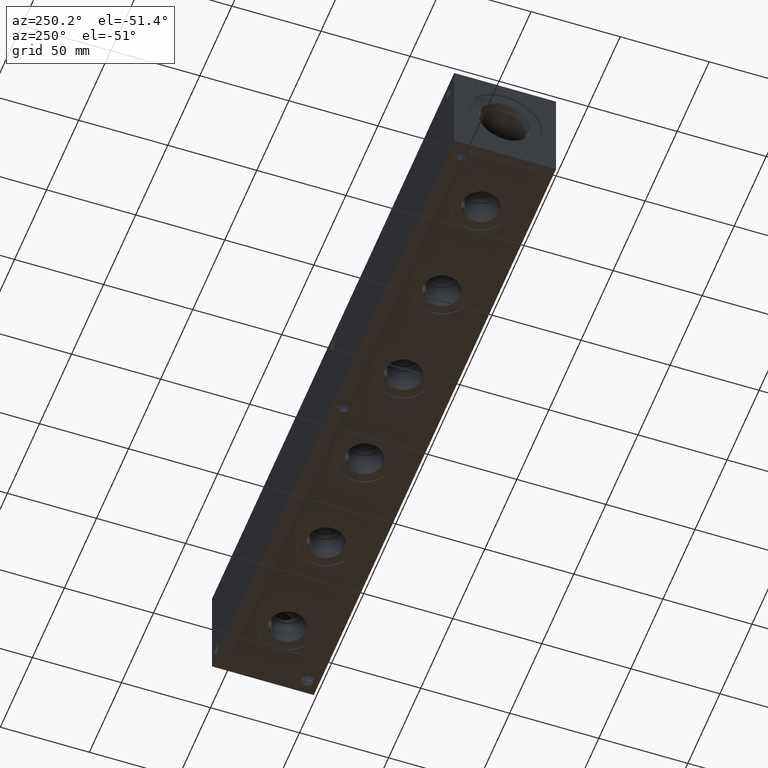
[diagram: clean part render]
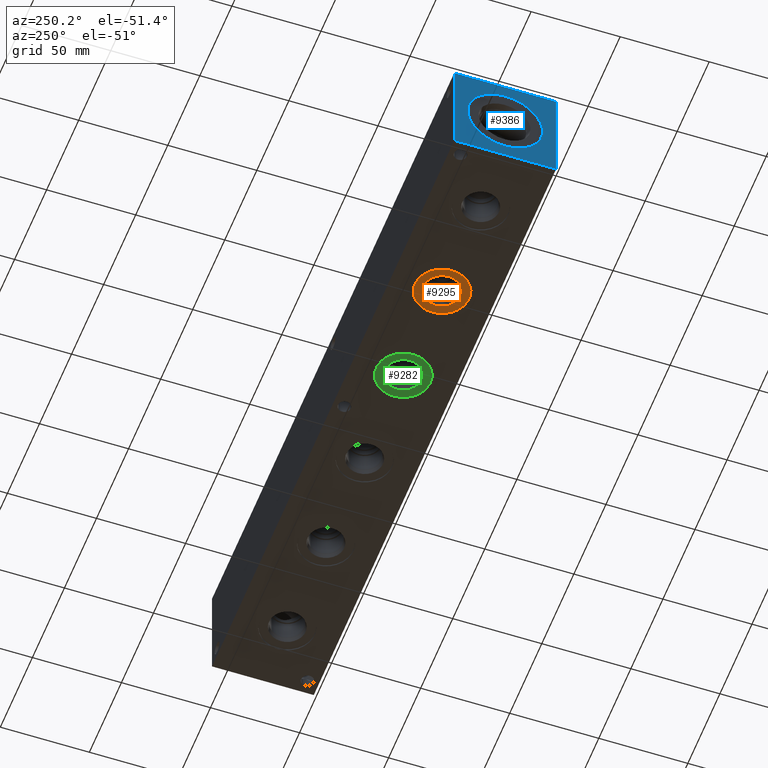
[diagram: same view with three faces highlighted in distinct colors, each labeled with its STEP entity id]
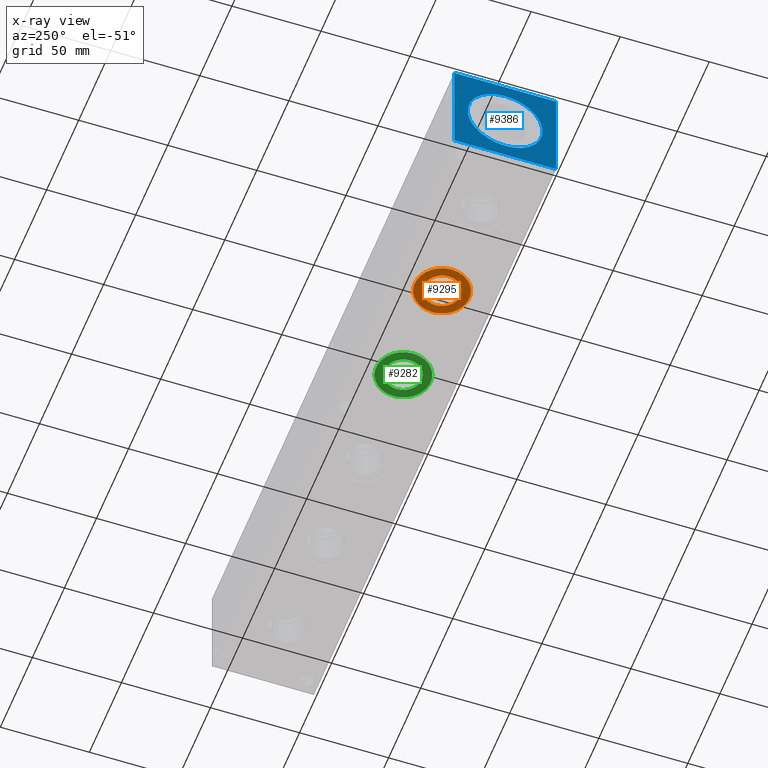
[diagram: x-ray of the same camera — body ghosted, the three highlighted faces saturated]
A machine part, auxiliary view with three faces highlighted in distinct colors.
The next image is the same camera in x-ray (body ghosted, the three faces saturated) — at least one of them is partly hidden behind the body in this view.
Their STEP definitions:

[orange] entity #9295 — the highlighted planar face has unit normal (0, 0, 1).
#296=CIRCLE('',#9828,15.3162);
#297=CIRCLE('',#9829,15.3162);
#298=CIRCLE('',#9831,10.2997);
#299=CIRCLE('',#9832,10.2997);
#477=FACE_BOUND('',#1672,.T.);
#725=PLANE('',#9830);
#1139=FACE_OUTER_BOUND('',#1671,.T.);
#1671=EDGE_LOOP('',(#7985,#7986));
#1672=EDGE_LOOP('',(#7987,#7988));
#4369=VERTEX_POINT('',#16042);
#4370=VERTEX_POINT('',#16044);
#4371=VERTEX_POINT('',#16048);
#4372=VERTEX_POINT('',#16049);
#5623=EDGE_CURVE('',#4369,#4370,#296,.T.);
#5624=EDGE_CURVE('',#4370,#4369,#297,.T.);
#5625=EDGE_CURVE('',#4371,#4372,#298,.T.);
#5626=EDGE_CURVE('',#4372,#4371,#299,.T.);
#7985=ORIENTED_EDGE('',*,*,#5624,.F.);
#7986=ORIENTED_EDGE('',*,*,#5623,.F.);
#7987=ORIENTED_EDGE('',*,*,#5625,.T.);
#7988=ORIENTED_EDGE('',*,*,#5626,.T.);
#9295=ADVANCED_FACE('',(#1139,#477),#725,.F.);
#9828=AXIS2_PLACEMENT_3D('',#16045,#11605,#11606);
#9829=AXIS2_PLACEMENT_3D('',#16046,#11607,#11608);
#9830=AXIS2_PLACEMENT_3D('',#16047,#11609,#11610);
#9831=AXIS2_PLACEMENT_3D('',#16050,#11611,#11612);
#9832=AXIS2_PLACEMENT_3D('',#16051,#11613,#11614);
#11605=DIRECTION('center_axis',(0.,0.,1.));
#11606=DIRECTION('ref_axis',(1.,0.,0.));
#11607=DIRECTION('center_axis',(0.,0.,1.));
#11608=DIRECTION('ref_axis',(1.,0.,0.));
#11609=DIRECTION('center_axis',(0.,0.,1.));
#11610=DIRECTION('ref_axis',(1.,0.,0.));
#11611=DIRECTION('center_axis',(0.,0.,1.));
#11612=DIRECTION('ref_axis',(1.,0.,0.));
#11613=DIRECTION('center_axis',(0.,0.,1.));
#11614=DIRECTION('ref_axis',(1.,0.,0.));
#16042=CARTESIAN_POINT('',(83.1088,28.575,0.7874));
#16044=CARTESIAN_POINT('',(113.7412,28.575,0.7874));
#16045=CARTESIAN_POINT('Origin',(98.425,28.575,0.7874));
#16046=CARTESIAN_POINT('Origin',(98.425,28.575,0.7874));
#16047=CARTESIAN_POINT('Origin',(108.7247,28.575,0.7874));
#16048=CARTESIAN_POINT('',(108.7247,28.575,0.7874));
#16049=CARTESIAN_POINT('',(88.1253,28.575,0.787399999999997));
#16050=CARTESIAN_POINT('Origin',(98.425,28.575,0.7874));
#16051=CARTESIAN_POINT('Origin',(98.425,28.575,0.7874));

[blue] entity #9386 — the highlighted planar face has unit normal (-1, 0, 0).
#216=CIRCLE('',#9691,21.0185);
#217=CIRCLE('',#9692,21.0185);
#497=FACE_BOUND('',#1783,.T.);
#745=PLANE('',#10053);
#1230=FACE_OUTER_BOUND('',#1782,.T.);
#1782=EDGE_LOOP('',(#8427,#8428,#8429,#8430));
#1783=EDGE_LOOP('',(#8431,#8432));
#2068=LINE('',#14555,#2847);
#2576=LINE('',#16484,#3355);
#2577=LINE('',#16485,#3356);
#2578=LINE('',#16486,#3357);
#2847=VECTOR('',#10446,10.);
#3355=VECTOR('',#12128,10.);
#3356=VECTOR('',#12129,10.);
#3357=VECTOR('',#12130,10.);
#3939=VERTEX_POINT('',#14548);
#3942=VERTEX_POINT('',#14553);
#4279=VERTEX_POINT('',#15775);
#4280=VERTEX_POINT('',#15776);
#4511=VERTEX_POINT('',#16482);
#4512=VERTEX_POINT('',#16483);
#4998=EDGE_CURVE('',#3942,#3939,#2068,.T.);
#5490=EDGE_CURVE('',#4279,#4280,#216,.T.);
#5491=EDGE_CURVE('',#4280,#4279,#217,.T.);
#5828=EDGE_CURVE('',#4511,#4512,#2576,.T.);
#5829=EDGE_CURVE('',#4512,#3939,#2577,.T.);
#5830=EDGE_CURVE('',#4511,#3942,#2578,.T.);
#8427=ORIENTED_EDGE('',*,*,#5828,.T.);
#8428=ORIENTED_EDGE('',*,*,#5829,.T.);
#8429=ORIENTED_EDGE('',*,*,#4998,.F.);
#8430=ORIENTED_EDGE('',*,*,#5830,.F.);
#8431=ORIENTED_EDGE('',*,*,#5490,.T.);
#8432=ORIENTED_EDGE('',*,*,#5491,.T.);
#9386=ADVANCED_FACE('',(#1230,#497),#745,.T.);
#9691=AXIS2_PLACEMENT_3D('',#15777,#11290,#11291);
#9692=AXIS2_PLACEMENT_3D('',#15778,#11292,#11293);
#10053=AXIS2_PLACEMENT_3D('',#16481,#12126,#12127);
#10446=DIRECTION('',(0.,-1.,0.));
#11290=DIRECTION('center_axis',(1.,0.,0.));
#11291=DIRECTION('ref_axis',(0.,0.,1.));
#11292=DIRECTION('center_axis',(1.,0.,0.));
#11293=DIRECTION('ref_axis',(0.,0.,1.));
#12126=DIRECTION('center_axis',(-1.,0.,0.));
#12127=DIRECTION('ref_axis',(0.,-1.,0.));
#12128=DIRECTION('',(0.,-1.,0.));
#12129=DIRECTION('',(0.,0.,1.));
#12130=DIRECTION('',(0.,0.,1.));
#14548=CARTESIAN_POINT('',(0.,0.,57.15));
#14553=CARTESIAN_POINT('',(0.,57.15,57.15));
#14555=CARTESIAN_POINT('',(0.,57.15,57.15));
#15775=CARTESIAN_POINT('',(0.,28.575,49.5935));
#15776=CARTESIAN_POINT('',(0.,28.575,7.55649999999999));
#15777=CARTESIAN_POINT('Origin',(0.,28.575,28.575));
#15778=CARTESIAN_POINT('Origin',(0.,28.575,28.575));
#16481=CARTESIAN_POINT('Origin',(0.,57.15,0.));
#16482=CARTESIAN_POINT('',(0.,57.15,0.));
#16483=CARTESIAN_POINT('',(0.,0.,0.));
#16484=CARTESIAN_POINT('',(0.,57.15,0.));
#16485=CARTESIAN_POINT('',(0.,0.,0.));
#16486=CARTESIAN_POINT('',(0.,57.15,0.));

[green] entity #9282 — the highlighted planar face has unit normal (0, 0, 1).
#273=CIRCLE('',#9792,15.3162);
#274=CIRCLE('',#9793,15.3162);
#275=CIRCLE('',#9795,10.2997);
#276=CIRCLE('',#9796,10.2997);
#476=FACE_BOUND('',#1658,.T.);
#724=PLANE('',#9794);
#1126=FACE_OUTER_BOUND('',#1657,.T.);
#1657=EDGE_LOOP('',(#7922,#7923));
#1658=EDGE_LOOP('',(#7924,#7925));
#4342=VERTEX_POINT('',#15967);
#4343=VERTEX_POINT('',#15969);
#4344=VERTEX_POINT('',#15973);
#4345=VERTEX_POINT('',#15974);
#5588=EDGE_CURVE('',#4342,#4343,#273,.T.);
#5589=EDGE_CURVE('',#4343,#4342,#274,.T.);
#5590=EDGE_CURVE('',#4344,#4345,#275,.T.);
#5591=EDGE_CURVE('',#4345,#4344,#276,.T.);
#7922=ORIENTED_EDGE('',*,*,#5589,.F.);
#7923=ORIENTED_EDGE('',*,*,#5588,.F.);
#7924=ORIENTED_EDGE('',*,*,#5590,.T.);
#7925=ORIENTED_EDGE('',*,*,#5591,.T.);
#9282=ADVANCED_FACE('',(#1126,#476),#724,.F.);
#9792=AXIS2_PLACEMENT_3D('',#15970,#11521,#11522);
#9793=AXIS2_PLACEMENT_3D('',#15971,#11523,#11524);
#9794=AXIS2_PLACEMENT_3D('',#15972,#11525,#11526);
#9795=AXIS2_PLACEMENT_3D('',#15975,#11527,#11528);
#9796=AXIS2_PLACEMENT_3D('',#15976,#11529,#11530);
#11521=DIRECTION('center_axis',(0.,0.,1.));
#11522=DIRECTION('ref_axis',(1.,0.,0.));
#11523=DIRECTION('center_axis',(0.,0.,1.));
#11524=DIRECTION('ref_axis',(1.,0.,0.));
#11525=DIRECTION('center_axis',(0.,0.,1.));
#11526=DIRECTION('ref_axis',(1.,0.,0.));
#11527=DIRECTION('center_axis',(0.,0.,1.));
#11528=DIRECTION('ref_axis',(1.,0.,0.));
#11529=DIRECTION('center_axis',(0.,0.,1.));
#11530=DIRECTION('ref_axis',(1.,0.,0.));
#15967=CARTESIAN_POINT('',(143.4338,28.575,0.7874));
#15969=CARTESIAN_POINT('',(174.0662,28.575,0.7874));
#15970=CARTESIAN_POINT('Origin',(158.75,28.575,0.7874));
#15971=CARTESIAN_POINT('Origin',(158.75,28.575,0.7874));
#15972=CARTESIAN_POINT('Origin',(169.0497,28.575,0.7874));
#15973=CARTESIAN_POINT('',(169.0497,28.575,0.7874));
#15974=CARTESIAN_POINT('',(148.4503,28.575,0.7874));
#15975=CARTESIAN_POINT('Origin',(158.75,28.575,0.7874));
#15976=CARTESIAN_POINT('Origin',(158.75,28.575,0.7874));